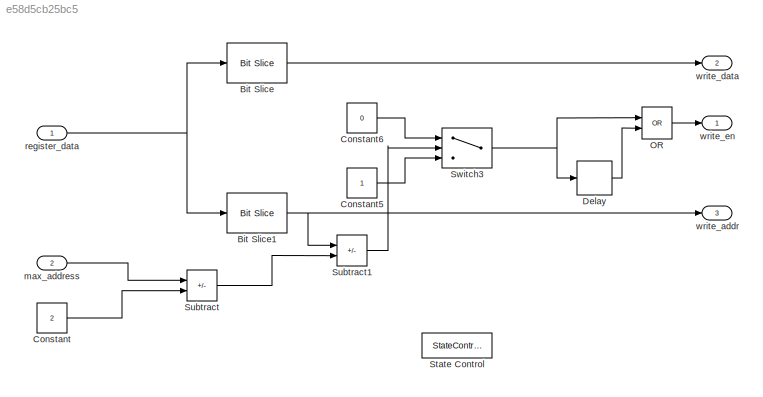
MODEL slx_e58d5cb25bc5
KIND model
CONFIG AbsTol = auto
CONFIG EnableMultiTasking = off
CONFIG FixedStep = auto
CONFIG MaxStep = auto
CONFIG MinStep = auto
CONFIG RelTol = 1e-3
CONFIG SampleTimeConstraint = Unconstrained
CONFIG SolverName = FixedStepDiscrete
CONFIG StartTime = 0.0
CONFIG StopTime = stopTime
BLOCK [Reference] Bit Slice  REF=hdlsllib/Logic and Bit
Operations/Bit Slice
  Ports = [1, 1]
  SourceBlock = hdlsllib/Logic and Bit\nOperations/Bit Slice
  SourceProductBaseCode = SL
  SourceType = Bit Slice
BLOCK [Reference] Bit Slice1  REF=hdlsllib/Logic and Bit
Operations/Bit Slice
  Ports = [1, 1]
  SourceBlock = hdlsllib/Logic and Bit\nOperations/Bit Slice
  SourceProductBaseCode = SL
  SourceType = Bit Slice
BLOCK [Constant] Constant
  OutDataTypeStr = uint8
  SampleTime = -1
  Value = 2
BLOCK [Constant] Constant5
  OutDataTypeStr = boolean
  SampleTime = -1
BLOCK [Constant] Constant6
  OutDataTypeStr = boolean
  SampleTime = -1
  Value = 0
BLOCK [Delay] Delay
  DelayLength = 1
  InputPortMap = u0
  Ports = [1, 1]
BLOCK [Logic] OR
  AllPortsSameDT = off
  IconShape = distinctive
  Operator = OR
  OutDataTypeStr = boolean
  Ports = [2, 1]
BLOCK [StateControl] State Control
  StateControl = Synchronous
BLOCK [Sum] Subtract
  IconShape = rectangular
  Inputs = +-
  Ports = [2, 1]
BLOCK [Sum] Subtract1
  IconShape = rectangular
  Inputs = +-
  OutDataTypeStr = int8
  Ports = [2, 1]
  SaturateOnIntegerOverflow = on
BLOCK [Switch] Switch3
  Criteria = u2 > Threshold
  InputSameDT = off
  OutDataTypeStr = boolean
  SaturateOnIntegerOverflow = off
BLOCK [Inport] max_address
  OutDataTypeStr = uint32
  Port = 2
  PortDimensions = 1
  SamplingMode = Sample based
  SignalType = real
BLOCK [Inport] register_data
  OutDataTypeStr = uint32
  PortDimensions = 1
  SamplingMode = Sample based
  SignalType = real
BLOCK [Outport] write_addr
  OutDataTypeStr = uint16
  Port = 3
  PortDimensions = 1
  SamplingMode = Sample based
  SignalType = real
BLOCK [Outport] write_data
  OutDataTypeStr = uint16
  Port = 2
  PortDimensions = 1
  SamplingMode = Sample based
  SignalType = real
BLOCK [Outport] write_en
  PortDimensions = 1
  SamplingMode = Sample based
  SignalType = real
NET Bit Slice1:1 -> Subtract1:1, write_addr:1
LINE Bit Slice:1 -> write_data:1
LINE Constant5:1 -> Switch3:3
LINE Constant6:1 -> Switch3:1
LINE Constant:1 -> Subtract:2
LINE Delay:1 -> OR:2
LINE OR:1 -> write_en:1
LINE Subtract1:1 -> Switch3:2
LINE Subtract:1 -> Subtract1:2
NET Switch3:1 -> Delay:1, OR:1
LINE max_address:1 -> Subtract:1
NET register_data:1 -> Bit Slice1:1, Bit Slice:1
note: NET lines group one-source signal fan-out (src -> all destinations, sorted); 1:1 wires keep LINE
